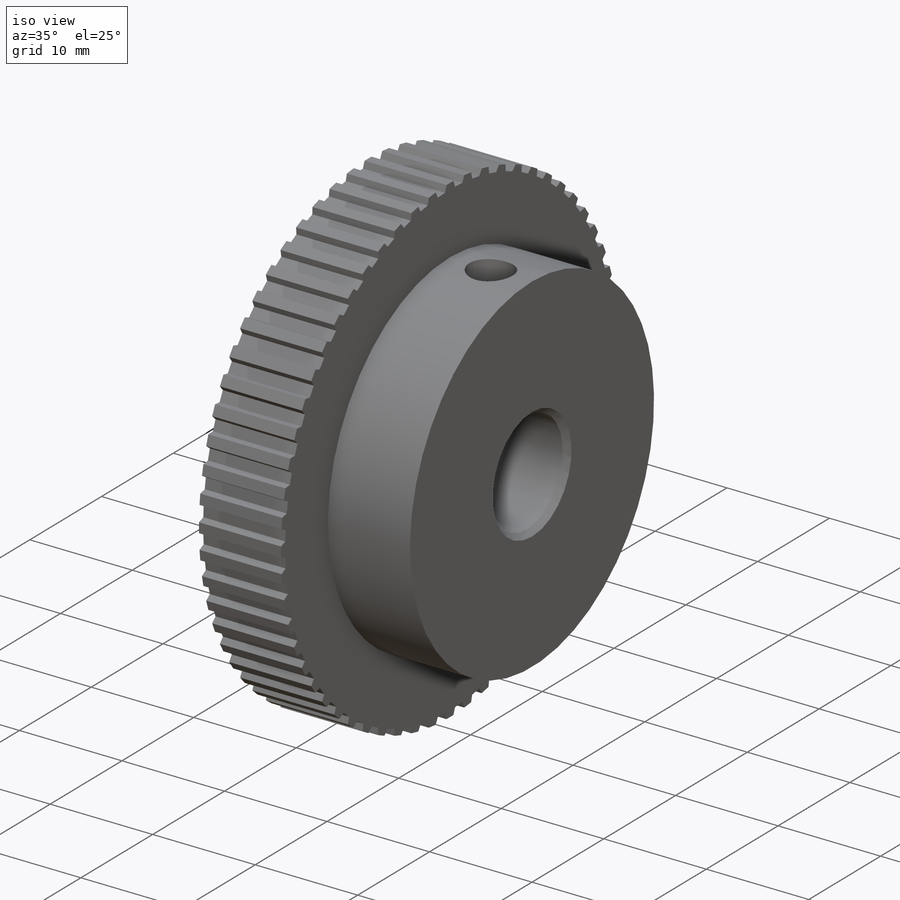
[diagram: iso view]
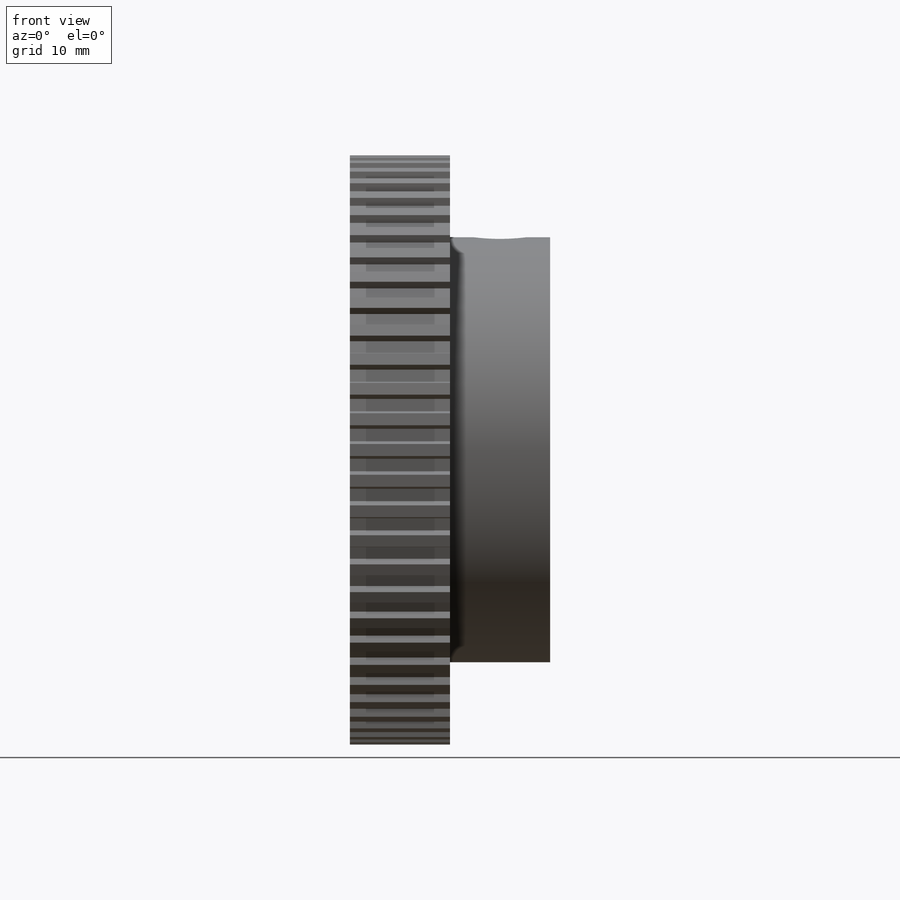
[diagram: front view]
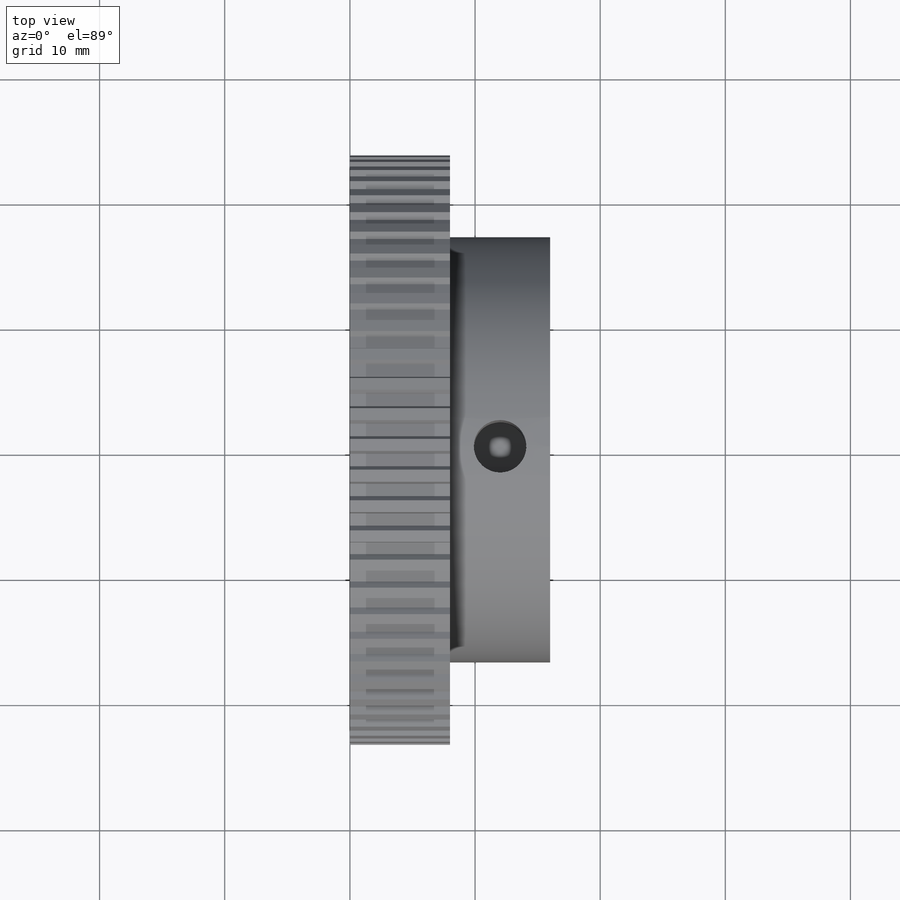
[diagram: top view]
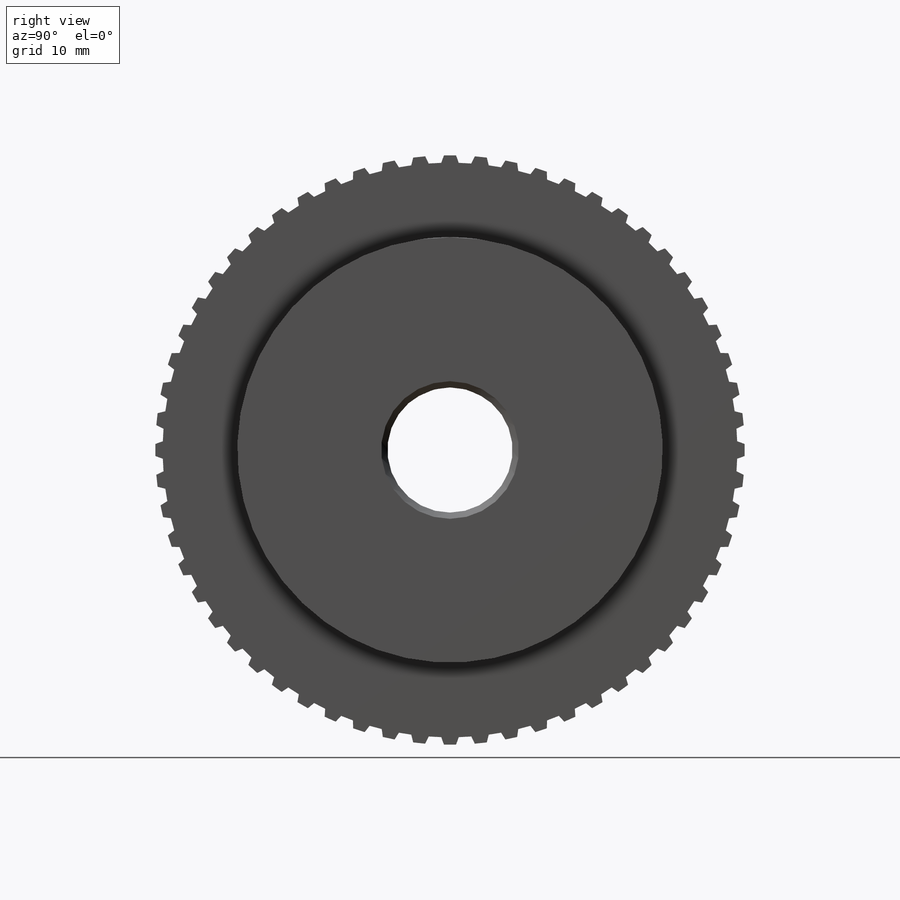
[diagram: right view]
SOLIDWORKS PART (.sldprt)
format: sldprt  version: not decoded by parser v0  size: 515,072 bytes
history: native  units: mm
features: sketch x5, plane x3, cut_extrude x2, material x1, revolve x1, chamfer x1, hole x1, thread x1 (+13 scaffold rows collapsed)
feature tree (28):
  scaffold x13  (default folders/planes/origin — collapsed)
  material  "3.1325 (EN-AW 2017A)"
  plane  "Plan de face"
  plane  "Plan de dessus"
  plane  "Plan de droite"
  sketch  "Esquisse1"  dims[D1=23.55mm D2=17.0mm D3=16.0mm D4=8.0mm D5=2.5mm D6=0.5mm D7=0.5mm]
  revolve  "Révolution1"  Angle=360deg
  sketch  "Esquisse2"  dims[c1.D1=~45.161569mm c2.D1=84.0deg c3.D1=0.8mm c3.D2=87.0deg c4.D2=0.5mm c4.D3=0.5mm c4.D4=64.0deg c4.D1=60.0]
  cut_extrude  "Enlèv. mat.-Extru.2"  [1 undecoded]
  sketch  "Esquisse3"  dims[D1=~6.625629mm]
  cut_extrude  "Enlèv. mat.-Extru.3"  [1 undecoded]
  chamfer  "Chanfrein1"  Distance=0.5mm Angle=45deg
  hole  "Trou taraudé M51"  Diameter=4.2mm Depth=23.55mm
  sketch  "Esquisse5"  dims[D1=4.0mm]
  sketch  "Esquisse4"  dims[hole-wizard template sketch: 60 standard entries collapsed; hole parameters kept: c18.Profondeur du trou pour taraudage jusqu'au prochain=23.55mm]
  thread  "Filetage de perçage1"  Diameter=5mm  [1 undecoded]
decode coverage: 9 of 11 modeling features carry decoded parameters
note: ~ marks probable driven/reference dimensions
note: 3 parameter values undecoded
note: suppression state not decoded; provenance and decode notes live in map.json
